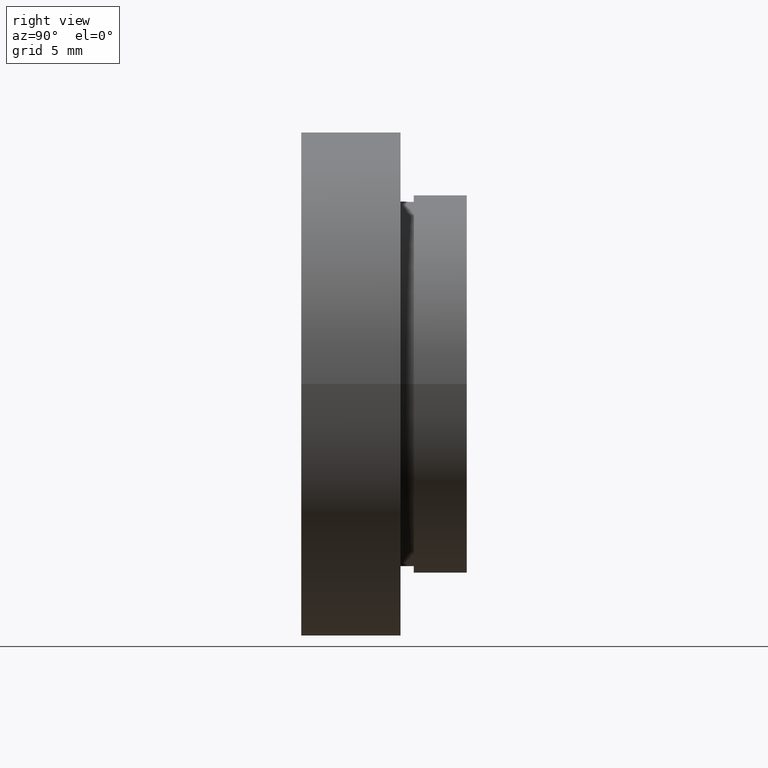
[diagram: clean part render]
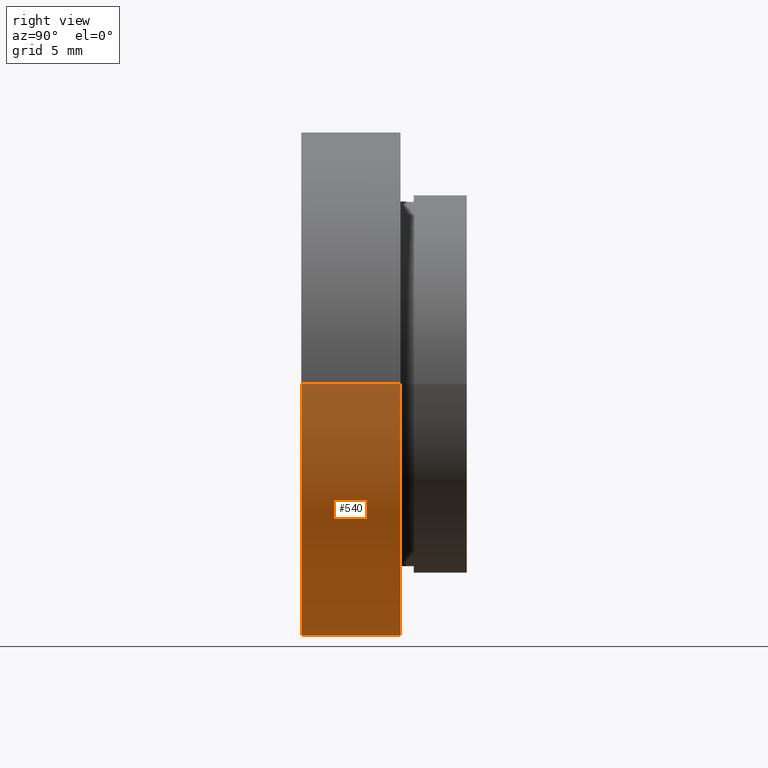
[diagram: same view with one face highlighted and labeled with its STEP entity id]
A machine part, right view. The second image highlights one B-rep face of the part: STEP entity #540.
In plain terms, the highlighted cylindrical surface (partial cylindrical patch) has radius 19.05 mm, axis along (-0, 1, -0).
Its self-contained STEP definition (entity closure, byte-faithful):
#11 = EDGE_CURVE ( 'NONE', #433, #220, #135, .T. ) ;
#14 = CYLINDRICAL_SURFACE ( 'NONE', #312, 19.04999999999999700 ) ;
#27 = VERTEX_POINT ( 'NONE', #352 ) ;
#42 = CARTESIAN_POINT ( 'NONE',  ( -19.04999999999999700, 16.88601823708207300, 0.0000000000000000000 ) ) ;
#59 = DIRECTION ( 'NONE',  ( -1.224646799147351000E-016, 1.000000000000000000, -0.0000000000000000000 ) ) ;
#69 = DIRECTION ( 'NONE',  ( -1.224646799147351000E-016, 1.000000000000000000, -0.0000000000000000000 ) ) ;
#73 = DIRECTION ( 'NONE',  ( -1.224646799147351000E-016, 1.000000000000000000, -0.0000000000000000000 ) ) ;
#80 = EDGE_CURVE ( 'NONE', #220, #27, #408, .T. ) ;
#133 = CARTESIAN_POINT ( 'NONE',  ( 19.05000000000000100, 7.500000000000000900, 2.332952152375707600E-015 ) ) ;
#135 = CIRCLE ( 'NONE', #150, 19.04999999999999700 ) ;
#150 = AXIS2_PLACEMENT_3D ( 'NONE', #519, #182, #155 ) ;
#155 = DIRECTION ( 'NONE',  ( -1.000000000000000000, -1.224646799147351000E-016, 0.0000000000000000000 ) ) ;
#165 = CARTESIAN_POINT ( 'NONE',  ( -19.04999999999999400, -5.802399104329317500E-015, 0.0000000000000000000 ) ) ;
#182 = DIRECTION ( 'NONE',  ( -1.224646799147351000E-016, 1.000000000000000000, -0.0000000000000000000 ) ) ;
#220 = VERTEX_POINT ( 'NONE', #165 ) ;
#239 = VECTOR ( 'NONE', #248, 1000.000000000000000 ) ;
#240 = ORIENTED_EDGE ( 'NONE', *, *, #11, .T. ) ;
#248 = DIRECTION ( 'NONE',  ( -1.224646799147351000E-016, 1.000000000000000000, -0.0000000000000000000 ) ) ;
#257 = ORIENTED_EDGE ( 'NONE', *, *, #556, .F. ) ;
#273 = AXIS2_PLACEMENT_3D ( 'NONE', #589, #69, #554 ) ;
#276 = ORIENTED_EDGE ( 'NONE', *, *, #80, .T. ) ;
#310 = CARTESIAN_POINT ( 'NONE',  ( 0.0000000000000000000, 16.88601823708207700, 0.0000000000000000000 ) ) ;
#312 = AXIS2_PLACEMENT_3D ( 'NONE', #310, #73, #349 ) ;
#345 = EDGE_LOOP ( 'NONE', ( #361, #240, #276, #257 ) ) ;
#349 = DIRECTION ( 'NONE',  ( -1.000000000000000000, -1.821231995776175700E-016, 0.0000000000000000000 ) ) ;
#352 = CARTESIAN_POINT ( 'NONE',  ( -19.05000000000000100, 7.499999999999995600, 0.0000000000000000000 ) ) ;
#361 = ORIENTED_EDGE ( 'NONE', *, *, #536, .F. ) ;
#380 = VECTOR ( 'NONE', #59, 1000.000000000000000 ) ;
#383 = VERTEX_POINT ( 'NONE', #133 ) ;
#408 = LINE ( 'NONE', #42, #239 ) ;
#433 = VERTEX_POINT ( 'NONE', #537 ) ;
#481 = LINE ( 'NONE', #590, #380 ) ;
#519 = CARTESIAN_POINT ( 'NONE',  ( 2.067940818438636500E-015, -3.469446951953614200E-015, 0.0000000000000000000 ) ) ;
#536 = EDGE_CURVE ( 'NONE', #433, #383, #481, .T. ) ;
#537 = CARTESIAN_POINT ( 'NONE',  ( 19.05000000000000100, -1.136494799577911100E-015, 2.332952152375707600E-015 ) ) ;
#539 = CIRCLE ( 'NONE', #273, 19.05000000000000100 ) ;
#540 = ADVANCED_FACE ( 'NONE', ( #573 ), #14, .T. ) ;
#554 = DIRECTION ( 'NONE',  ( -1.000000000000000000, -1.365923996832131600E-016, 0.0000000000000000000 ) ) ;
#556 = EDGE_CURVE ( 'NONE', #383, #27, #539, .T. ) ;
#573 = FACE_OUTER_BOUND ( 'NONE', #345, .T. ) ;
#589 = CARTESIAN_POINT ( 'NONE',  ( 1.149455719078122700E-015, 7.499999999999998200, 0.0000000000000000000 ) ) ;
#590 = CARTESIAN_POINT ( 'NONE',  ( 19.04999999999999700, 16.88601823708208000, 2.332952152375707300E-015 ) ) ;